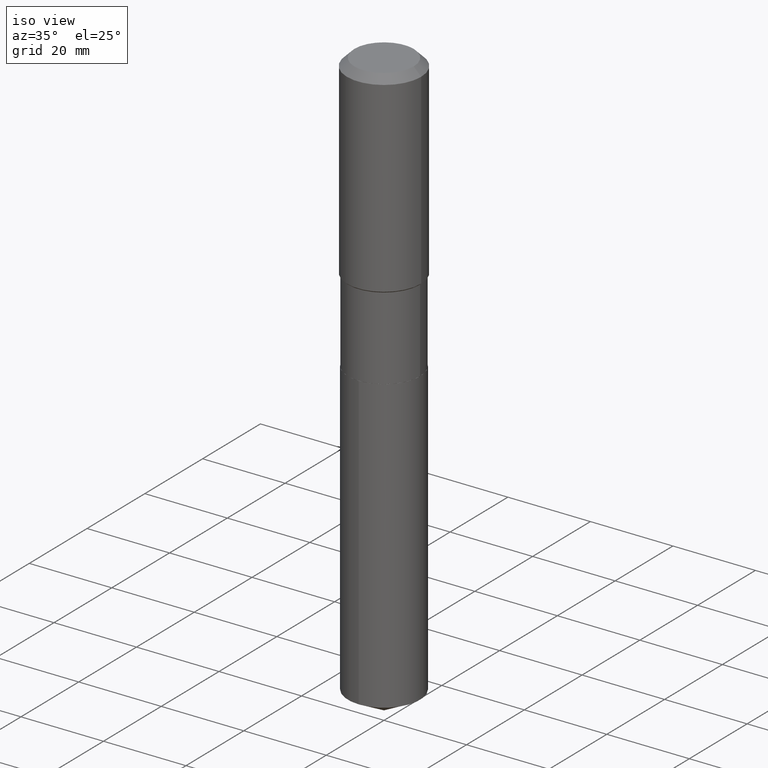
[diagram: clean part render]
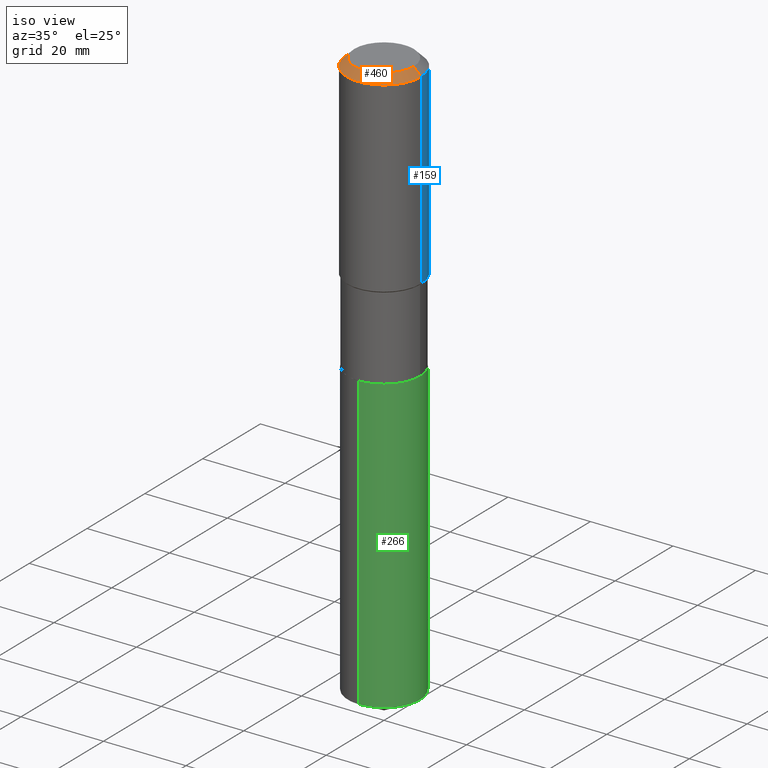
[diagram: same view with three faces highlighted in distinct colors, each labeled with its STEP entity id]
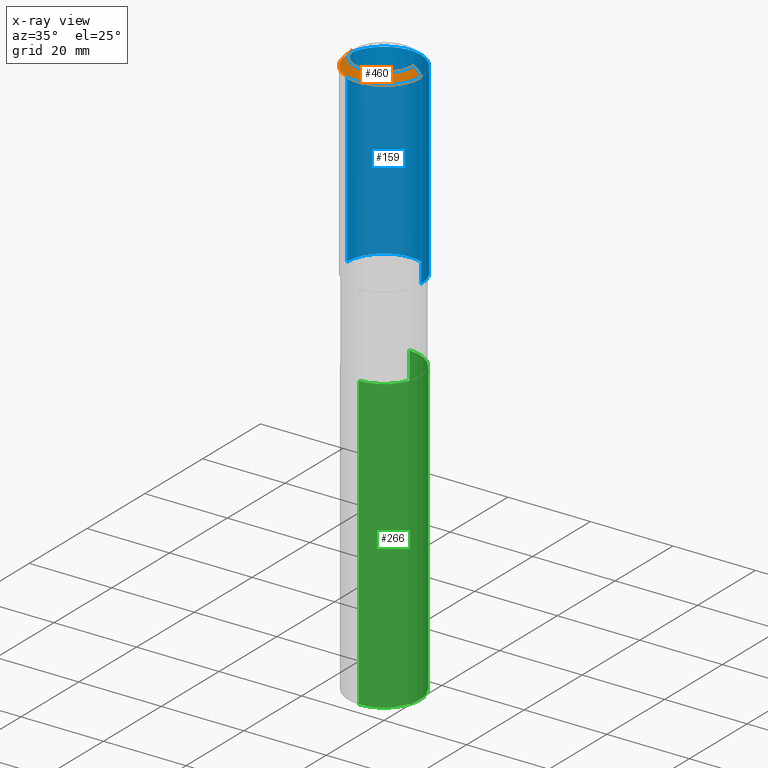
[diagram: x-ray of the same camera — body ghosted, the three highlighted faces saturated]
A machine part, iso view with three faces highlighted in distinct colors.
The next image is the same camera in x-ray (body ghosted, the three faces saturated) — at least one of them is partly hidden behind the body in this view.
Their STEP definitions:

[orange] entity #460 — the highlighted conical surface has half-angle 45 deg.
#1 = DIRECTION ( 'NONE',  ( -2.445468806185136597E-29, 3.491481338843145583E-15, 1.000000000000000000 ) ) ;
#3 = DIRECTION ( 'NONE',  ( 1.000000000000000000, -6.982962677686266711E-15, 0.000000000000000000 ) ) ;
#32 = CARTESIAN_POINT ( 'NONE',  ( 0.3543499999999999983, -2.721854107321943733E-15, -0.07087000000000043265 ) ) ;
#49 = VERTEX_POINT ( 'NONE', #449 ) ;
#57 = VECTOR ( 'NONE', #415, 39.37007874015748143 ) ;
#60 = FACE_OUTER_BOUND ( 'NONE', #467, .T. ) ;
#69 = VERTEX_POINT ( 'NONE', #458 ) ;
#99 = EDGE_CURVE ( 'NONE', #49, #190, #295, .T. ) ;
#108 = CARTESIAN_POINT ( 'NONE',  ( -0.3543499999999999983, 2.226971542354313655E-15, -0.07087000000000043265 ) ) ;
#121 = AXIS2_PLACEMENT_3D ( 'NONE', #404, #251, #290 ) ;
#155 = EDGE_CURVE ( 'NONE', #361, #49, #381, .T. ) ;
#156 = CARTESIAN_POINT ( 'NONE',  ( 1.733103742943417062E-30, -2.474412824838152853E-16, -0.07087000000000043265 ) ) ;
#164 = CARTESIAN_POINT ( 'NONE',  ( -0.2834800000000000098, 2.103250901112408108E-15, 3.860086710898179346E-18 ) ) ;
#171 = AXIS2_PLACEMENT_3D ( 'NONE', #393, #350, #205 ) ;
#190 = VERTEX_POINT ( 'NONE', #32 ) ;
#196 = ORIENTED_EDGE ( 'NONE', *, *, #99, .T. ) ;
#205 = DIRECTION ( 'NONE',  ( 1.000000000000000000, -6.982962677686266711E-15, 4.876249319814053138E-29 ) ) ;
#214 = LINE ( 'NONE', #248, #370 ) ;
#245 = DIRECTION ( 'NONE',  ( 0.7071067811865453523, -7.319954787623248157E-15, -0.7071067811865496822 ) ) ;
#248 = CARTESIAN_POINT ( 'NONE',  ( 0.3543499999999999983, -2.678458747994157430E-15, -0.07087000000000043265 ) ) ;
#251 = DIRECTION ( 'NONE',  ( 2.445468806185136597E-29, -3.491481338843145583E-15, -1.000000000000000000 ) ) ;
#256 = AXIS2_PLACEMENT_3D ( 'NONE', #156, #1, #3 ) ;
#282 = ORIENTED_EDGE ( 'NONE', *, *, #372, .F. ) ;
#290 = DIRECTION ( 'NONE',  ( -1.000000000000000000, 6.982962677686266711E-15, 0.000000000000000000 ) ) ;
#295 = CIRCLE ( 'NONE', #256, 0.3543499999999999983 ) ;
#296 = CONICAL_SURFACE ( 'NONE', #121, 0.3543499999999999983, 0.7853981633974452814 ) ;
#312 = ORIENTED_EDGE ( 'NONE', *, *, #482, .F. ) ;
#350 = DIRECTION ( 'NONE',  ( -2.445468806185136597E-29, 3.491481338843145583E-15, 1.000000000000000000 ) ) ;
#355 = ORIENTED_EDGE ( 'NONE', *, *, #155, .T. ) ;
#361 = VERTEX_POINT ( 'NONE', #164 ) ;
#370 = VECTOR ( 'NONE', #245, 39.37007874015748143 ) ;
#372 = EDGE_CURVE ( 'NONE', #361, #69, #407, .T. ) ;
#381 = LINE ( 'NONE', #108, #57 ) ;
#393 = CARTESIAN_POINT ( 'NONE',  ( -9.439721640706191963E-47, 1.347742071746725396E-32, 3.860086710912455110E-18 ) ) ;
#404 = CARTESIAN_POINT ( 'NONE',  ( 1.733103742943417062E-30, -2.474412824838152853E-16, -0.07087000000000043265 ) ) ;
#407 = CIRCLE ( 'NONE', #171, 0.2834800000000000098 ) ;
#415 = DIRECTION ( 'NONE',  ( -0.7071067811865453523, 2.468850131082234184E-15, -0.7071067811865496822 ) ) ;
#449 = CARTESIAN_POINT ( 'NONE',  ( -0.3543499999999999983, -8.447851210538351005E-16, -0.07087000000000043265 ) ) ;
#458 = CARTESIAN_POINT ( 'NONE',  ( 0.2834800000000000098, -2.311636360201216027E-15, 3.860086710927458874E-18 ) ) ;
#460 = ADVANCED_FACE ( 'NONE', ( #60 ), #296, .T. ) ;
#467 = EDGE_LOOP ( 'NONE', ( #312, #282, #355, #196 ) ) ;
#482 = EDGE_CURVE ( 'NONE', #69, #190, #214, .T. ) ;

[blue] entity #159 — the highlighted cylindrical surface (partial cylindrical patch) has radius 9.0005 mm, axis along (-0, 0, 1).
#6 = VECTOR ( 'NONE', #356, 39.37007874015748143 ) ;
#13 = ORIENTED_EDGE ( 'NONE', *, *, #451, .T. ) ;
#32 = CARTESIAN_POINT ( 'NONE',  ( 0.3543499999999999983, -2.721854107321943733E-15, -0.07087000000000043265 ) ) ;
#43 = AXIS2_PLACEMENT_3D ( 'NONE', #101, #254, #135 ) ;
#49 = VERTEX_POINT ( 'NONE', #449 ) ;
#52 = VERTEX_POINT ( 'NONE', #186 ) ;
#59 = LINE ( 'NONE', #139, #86 ) ;
#80 = VERTEX_POINT ( 'NONE', #310 ) ;
#86 = VECTOR ( 'NONE', #293, 39.37007874015748143 ) ;
#92 = EDGE_LOOP ( 'NONE', ( #13, #316, #124, #285 ) ) ;
#101 = CARTESIAN_POINT ( 'NONE',  ( 4.537078276115283261E-29, -6.477745327955687522E-15, -1.855299999999999727 ) ) ;
#124 = ORIENTED_EDGE ( 'NONE', *, *, #187, .F. ) ;
#135 = DIRECTION ( 'NONE',  ( 1.000000000000000000, -6.982962677686269077E-15, 0.000000000000000000 ) ) ;
#139 = CARTESIAN_POINT ( 'NONE',  ( 0.3543500000000001648, -2.474412824838129483E-15, 1.727873240503290590E-29 ) ) ;
#148 = DIRECTION ( 'NONE',  ( 1.000000000000000000, -6.982962677686265922E-15, 4.876176775795935793E-29 ) ) ;
#153 = DIRECTION ( 'NONE',  ( -2.445468806185136597E-29, 3.491481338843145583E-15, 1.000000000000000000 ) ) ;
#159 = ADVANCED_FACE ( 'NONE', ( #188 ), #181, .T. ) ;
#181 = CYLINDRICAL_SURFACE ( 'NONE', #314, 0.3543500000000001648 ) ;
#186 = CARTESIAN_POINT ( 'NONE',  ( 0.3543500000000002204, -8.952158152793815822E-15, -1.855299999999999727 ) ) ;
#187 = EDGE_CURVE ( 'NONE', #190, #49, #369, .T. ) ;
#188 = FACE_OUTER_BOUND ( 'NONE', #92, .T. ) ;
#190 = VERTEX_POINT ( 'NONE', #32 ) ;
#254 = DIRECTION ( 'NONE',  ( -2.445468806185136597E-29, 3.491481338843145583E-15, 1.000000000000000000 ) ) ;
#285 = ORIENTED_EDGE ( 'NONE', *, *, #440, .F. ) ;
#291 = EDGE_CURVE ( 'NONE', #80, #49, #466, .T. ) ;
#293 = DIRECTION ( 'NONE',  ( -2.445468806185136877E-29, 3.491481338843145188E-15, 1.000000000000000000 ) ) ;
#305 = DIRECTION ( 'NONE',  ( 1.000000000000000000, -6.982962677686266711E-15, 0.000000000000000000 ) ) ;
#310 = CARTESIAN_POINT ( 'NONE',  ( -0.3543500000000002204, -3.959937143789770553E-15, -1.855299999999999727 ) ) ;
#314 = AXIS2_PLACEMENT_3D ( 'NONE', #455, #337, #148 ) ;
#316 = ORIENTED_EDGE ( 'NONE', *, *, #291, .T. ) ;
#337 = DIRECTION ( 'NONE',  ( -2.445468806185136597E-29, 3.491481338843145583E-15, 1.000000000000000000 ) ) ;
#344 = AXIS2_PLACEMENT_3D ( 'NONE', #419, #153, #305 ) ;
#356 = DIRECTION ( 'NONE',  ( -2.445468806185136877E-29, 3.491481338843145188E-15, 1.000000000000000000 ) ) ;
#369 = CIRCLE ( 'NONE', #344, 0.3543499999999999983 ) ;
#419 = CARTESIAN_POINT ( 'NONE',  ( 1.733103742943417062E-30, -2.474412824838152853E-16, -0.07087000000000043265 ) ) ;
#422 = CIRCLE ( 'NONE', #43, 0.3543500000000002204 ) ;
#426 = CARTESIAN_POINT ( 'NONE',  ( -0.3543500000000001648, 2.517808184165916180E-15, -1.743024649231826627E-29 ) ) ;
#440 = EDGE_CURVE ( 'NONE', #52, #190, #59, .T. ) ;
#449 = CARTESIAN_POINT ( 'NONE',  ( -0.3543499999999999983, -8.447851210538351005E-16, -0.07087000000000043265 ) ) ;
#451 = EDGE_CURVE ( 'NONE', #52, #80, #422, .T. ) ;
#455 = CARTESIAN_POINT ( 'NONE',  ( 0.000000000000000000, 0.000000000000000000, 0.000000000000000000 ) ) ;
#466 = LINE ( 'NONE', #426, #6 ) ;

[green] entity #266 — the highlighted cylindrical surface (partial cylindrical patch) has radius 8.7312 mm, axis along (-0, 0, 1).
#10 = ORIENTED_EDGE ( 'NONE', *, *, #67, .T. ) ;
#36 = VERTEX_POINT ( 'NONE', #250 ) ;
#42 = CARTESIAN_POINT ( 'NONE',  ( 1.332065641372455860E-28, -1.901940260002451238E-14, -5.447224882866367857 ) ) ;
#44 = EDGE_CURVE ( 'NONE', #82, #36, #146, .T. ) ;
#48 = CARTESIAN_POINT ( 'NONE',  ( 6.496387883630815486E-29, -9.275120176636815281E-15, -2.656499999999999861 ) ) ;
#67 = EDGE_CURVE ( 'NONE', #82, #429, #240, .T. ) ;
#70 = CARTESIAN_POINT ( 'NONE',  ( -2.400393420454521259E-15, -0.3437500000000189848, -5.447224882866366080 ) ) ;
#81 = CARTESIAN_POINT ( 'NONE',  ( 2.442490654175477706E-15, 0.3437499999999907851, -2.656500000000001194 ) ) ;
#82 = VERTEX_POINT ( 'NONE', #70 ) ;
#91 = DIRECTION ( 'NONE',  ( -6.982962677686265922E-15, -1.000000000000000000, 3.178877665354778874E-15 ) ) ;
#131 = AXIS2_PLACEMENT_3D ( 'NONE', #42, #309, #260 ) ;
#134 = ORIENTED_EDGE ( 'NONE', *, *, #252, .T. ) ;
#146 = LINE ( 'NONE', #300, #232 ) ;
#200 = AXIS2_PLACEMENT_3D ( 'NONE', #431, #288, #234 ) ;
#215 = CIRCLE ( 'NONE', #200, 0.3437500000000000000 ) ;
#232 = VECTOR ( 'NONE', #445, 39.37007874015748143 ) ;
#234 = DIRECTION ( 'NONE',  ( -6.982962677686265922E-15, -1.000000000000000000, 3.178877665354778874E-15 ) ) ;
#240 = CIRCLE ( 'NONE', #131, 0.3437500000000000000 ) ;
#249 = EDGE_CURVE ( 'NONE', #36, #360, #215, .T. ) ;
#250 = CARTESIAN_POINT ( 'NONE',  ( -2.400393420454588706E-15, -0.3437500000000092704, -2.656499999999998973 ) ) ;
#252 = EDGE_CURVE ( 'NONE', #429, #360, #464, .T. ) ;
#260 = DIRECTION ( 'NONE',  ( -6.982962677686265922E-15, -1.000000000000000000, 3.178877665354778874E-15 ) ) ;
#266 = ADVANCED_FACE ( 'NONE', ( #272 ), #428, .T. ) ;
#272 = FACE_OUTER_BOUND ( 'NONE', #357, .T. ) ;
#288 = DIRECTION ( 'NONE',  ( -2.445339048643341394E-29, 3.491667159028337062E-15, 1.000000000000000000 ) ) ;
#300 = CARTESIAN_POINT ( 'NONE',  ( -2.400393420454588706E-15, -0.3437500000000092704, -2.656499999999998973 ) ) ;
#309 = DIRECTION ( 'NONE',  ( -2.445339048643341394E-29, 3.491667159028337062E-15, 1.000000000000000000 ) ) ;
#319 = DIRECTION ( 'NONE',  ( -2.445339048643341394E-29, 3.491667159028337062E-15, 1.000000000000000000 ) ) ;
#351 = ORIENTED_EDGE ( 'NONE', *, *, #249, .F. ) ;
#357 = EDGE_LOOP ( 'NONE', ( #10, #134, #351, #432 ) ) ;
#360 = VERTEX_POINT ( 'NONE', #81 ) ;
#389 = DIRECTION ( 'NONE',  ( -2.445339048643341394E-29, 3.491667159028337062E-15, 1.000000000000000000 ) ) ;
#428 = CYLINDRICAL_SURFACE ( 'NONE', #471, 0.3437500000000000000 ) ;
#429 = VERTEX_POINT ( 'NONE', #478 ) ;
#431 = CARTESIAN_POINT ( 'NONE',  ( 6.496387883630815486E-29, -9.275120176636815281E-15, -2.656499999999999861 ) ) ;
#432 = ORIENTED_EDGE ( 'NONE', *, *, #44, .F. ) ;
#433 = CARTESIAN_POINT ( 'NONE',  ( 2.442490654175408681E-15, 0.3437499999999906741, -2.656500000000001194 ) ) ;
#445 = DIRECTION ( 'NONE',  ( -2.445339048643341394E-29, 3.491667159028337062E-15, 1.000000000000000000 ) ) ;
#464 = LINE ( 'NONE', #433, #488 ) ;
#471 = AXIS2_PLACEMENT_3D ( 'NONE', #48, #319, #91 ) ;
#478 = CARTESIAN_POINT ( 'NONE',  ( 2.442490654175476918E-15, 0.3437499999999810707, -5.447224882866368745 ) ) ;
#488 = VECTOR ( 'NONE', #389, 39.37007874015748143 ) ;